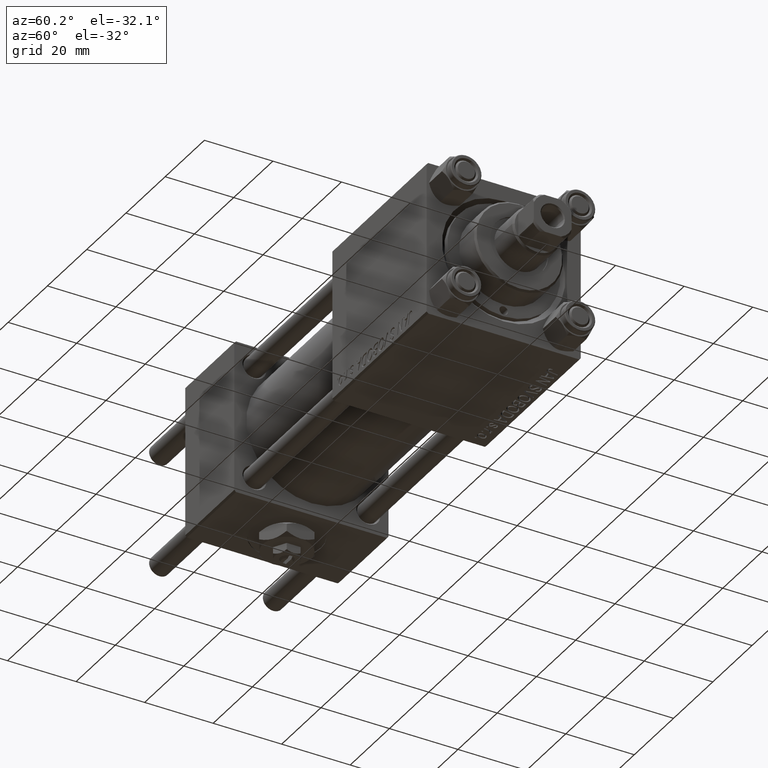
[diagram: clean part render]
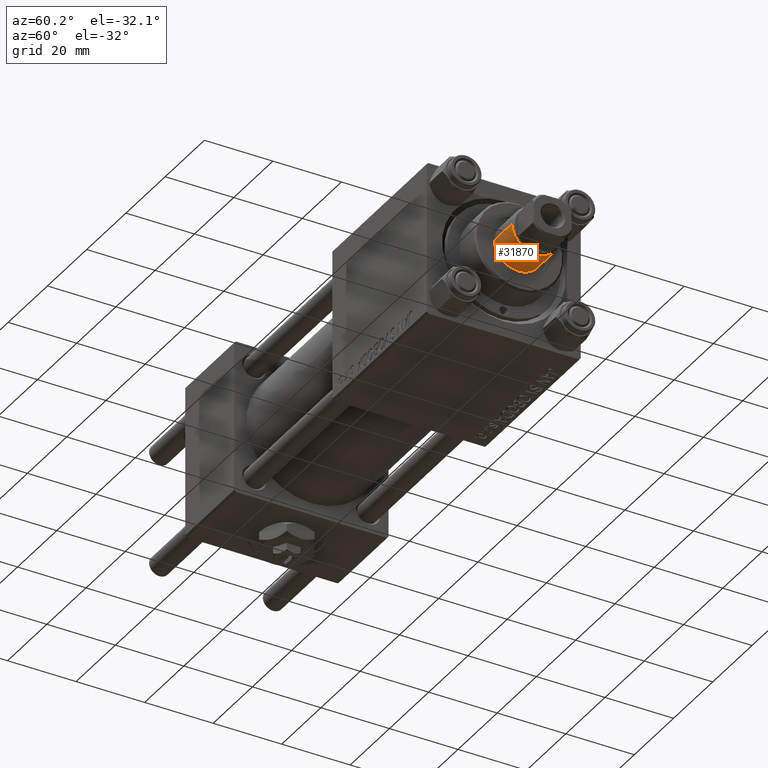
[diagram: same view with one face highlighted and labeled with its STEP entity id]
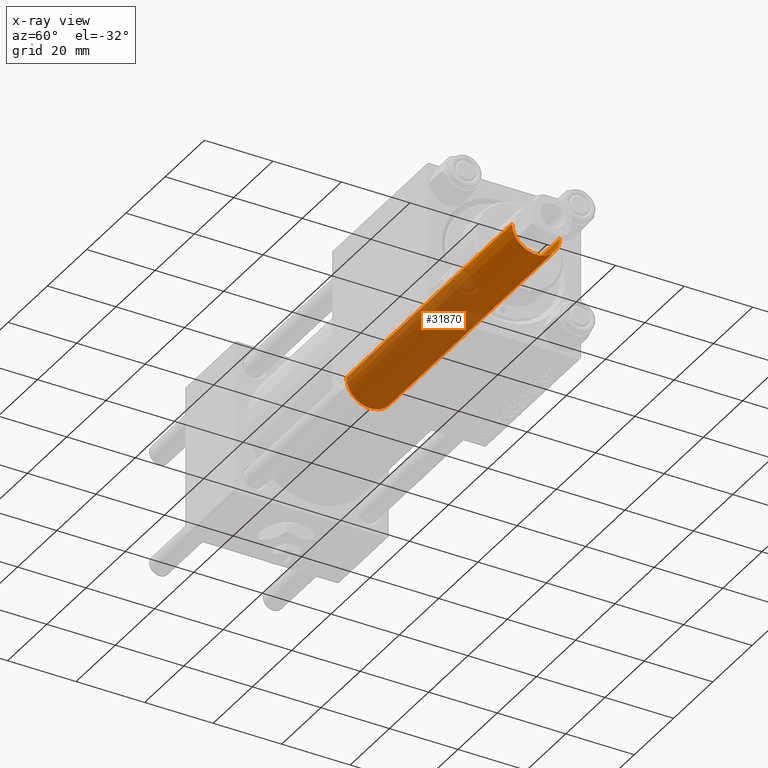
[diagram: x-ray of the same camera — body ghosted, the highlighted face saturated]
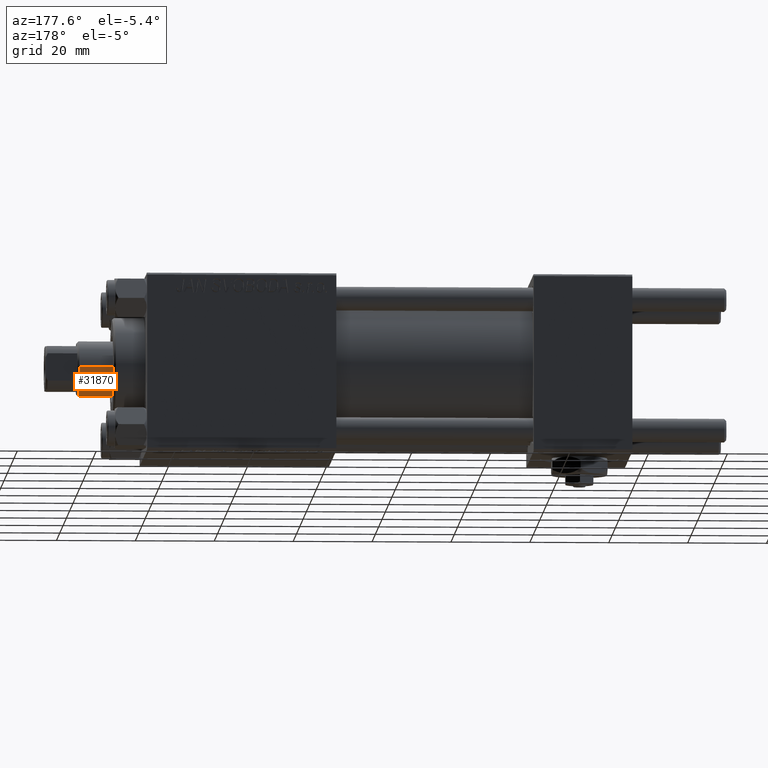
[diagram: same view with one face highlighted and labeled with its STEP entity id]
A machine part, auxiliary view. The second image highlights one B-rep face of the part: STEP entity #31870.
The next image is the same camera in x-ray: the body ghosted, the highlighted face saturated — about 68% of this face is hidden behind the body in this view.
A second angle (auxiliary view) of the same face is appended — the face is thin or edge-on in the first view.
In plain terms, the highlighted cylindrical surface (edge-blend (fillet) strip) has radius 7 mm, axis along (-1, 0, 0).
Its self-contained STEP definition (entity closure, byte-faithful):
#267 = VERTEX_POINT ( 'NONE', #1258 ) ;
#1258 = CARTESIAN_POINT ( 'NONE',  ( -7.000000000000000000, 0.000000000000000000, 30.00000000000000000 ) ) ;
#2912 = AXIS2_PLACEMENT_3D ( 'NONE', #15524, #34635, #12116 ) ;
#3497 = AXIS2_PLACEMENT_3D ( 'NONE', #28454, #12226, #32114 ) ;
#4052 = EDGE_CURVE ( 'NONE', #16763, #267, #9135, .T. ) ;
#4971 = ORIENTED_EDGE ( 'NONE', *, *, #4052, .F. ) ;
#8406 = ORIENTED_EDGE ( 'NONE', *, *, #39216, .T. ) ;
#9135 = LINE ( 'NONE', #37379, #49432 ) ;
#9814 = DIRECTION ( 'NONE',  ( -0.000000000000000000, -0.000000000000000000, -1.000000000000000000 ) ) ;
#11262 = EDGE_CURVE ( 'NONE', #16763, #32479, #51351, .T. ) ;
#12116 = DIRECTION ( 'NONE',  ( 1.000000000000000000, 0.000000000000000000, 0.000000000000000000 ) ) ;
#12226 = DIRECTION ( 'NONE',  ( -0.000000000000000000, -0.000000000000000000, -1.000000000000000000 ) ) ;
#15524 = CARTESIAN_POINT ( 'NONE',  ( 0.000000000000000000, 0.000000000000000000, 114.4999999999999858 ) ) ;
#16763 = VERTEX_POINT ( 'NONE', #19363 ) ;
#19207 = ORIENTED_EDGE ( 'NONE', *, *, #11262, .T. ) ;
#19340 = EDGE_CURVE ( 'NONE', #32479, #27157, #29700, .T. ) ;
#19363 = CARTESIAN_POINT ( 'NONE',  ( -7.000000000000000000, 0.000000000000000000, 114.4999999999999858 ) ) ;
#23434 = DIRECTION ( 'NONE',  ( 1.000000000000000000, 0.000000000000000000, 0.000000000000000000 ) ) ;
#23508 = CYLINDRICAL_SURFACE ( 'NONE', #3497, 7.000000000000000000 ) ;
#24584 = DIRECTION ( 'NONE',  ( -0.000000000000000000, -0.000000000000000000, -1.000000000000000000 ) ) ;
#25785 = CARTESIAN_POINT ( 'NONE',  ( 7.000000000000000000, 8.572527594031473190E-16, 115.0000000000000000 ) ) ;
#27157 = VERTEX_POINT ( 'NONE', #46816 ) ;
#28454 = CARTESIAN_POINT ( 'NONE',  ( 0.000000000000000000, 0.000000000000000000, 115.0000000000000000 ) ) ;
#29700 = LINE ( 'NONE', #25785, #44012 ) ;
#31859 = FACE_OUTER_BOUND ( 'NONE', #46023, .T. ) ;
#31870 = ADVANCED_FACE ( 'NONE', ( #31859 ), #23508, .T. ) ;
#32114 = DIRECTION ( 'NONE',  ( -1.000000000000000000, 0.000000000000000000, 0.000000000000000000 ) ) ;
#32479 = VERTEX_POINT ( 'NONE', #46149 ) ;
#34635 = DIRECTION ( 'NONE',  ( 0.000000000000000000, 0.000000000000000000, -1.000000000000000000 ) ) ;
#37379 = CARTESIAN_POINT ( 'NONE',  ( -7.000000000000000000, 0.000000000000000000, 115.0000000000000000 ) ) ;
#39216 = EDGE_CURVE ( 'NONE', #27157, #267, #42171, .T. ) ;
#42171 = CIRCLE ( 'NONE', #42983, 7.000000000000000000 ) ;
#42983 = AXIS2_PLACEMENT_3D ( 'NONE', #46981, #44065, #23434 ) ;
#44012 = VECTOR ( 'NONE', #9814, 1000.000000000000000 ) ;
#44065 = DIRECTION ( 'NONE',  ( 0.000000000000000000, 0.000000000000000000, 1.000000000000000000 ) ) ;
#46023 = EDGE_LOOP ( 'NONE', ( #19207, #46997, #8406, #4971 ) ) ;
#46149 = CARTESIAN_POINT ( 'NONE',  ( 7.000000000000000000, 8.572527594031473190E-16, 114.4999999999999858 ) ) ;
#46816 = CARTESIAN_POINT ( 'NONE',  ( 7.000000000000000000, 8.572527594031473190E-16, 30.00000000000000000 ) ) ;
#46981 = CARTESIAN_POINT ( 'NONE',  ( 0.000000000000000000, 0.000000000000000000, 30.00000000000000000 ) ) ;
#46997 = ORIENTED_EDGE ( 'NONE', *, *, #19340, .T. ) ;
#49432 = VECTOR ( 'NONE', #24584, 1000.000000000000000 ) ;
#51351 = CIRCLE ( 'NONE', #2912, 7.000000000000000000 ) ;